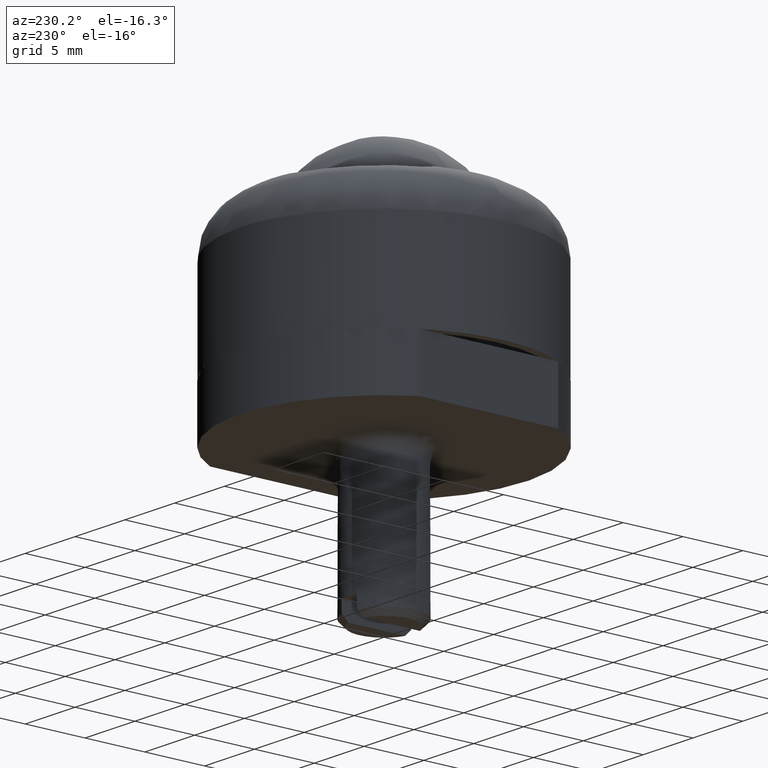
[diagram: clean part render]
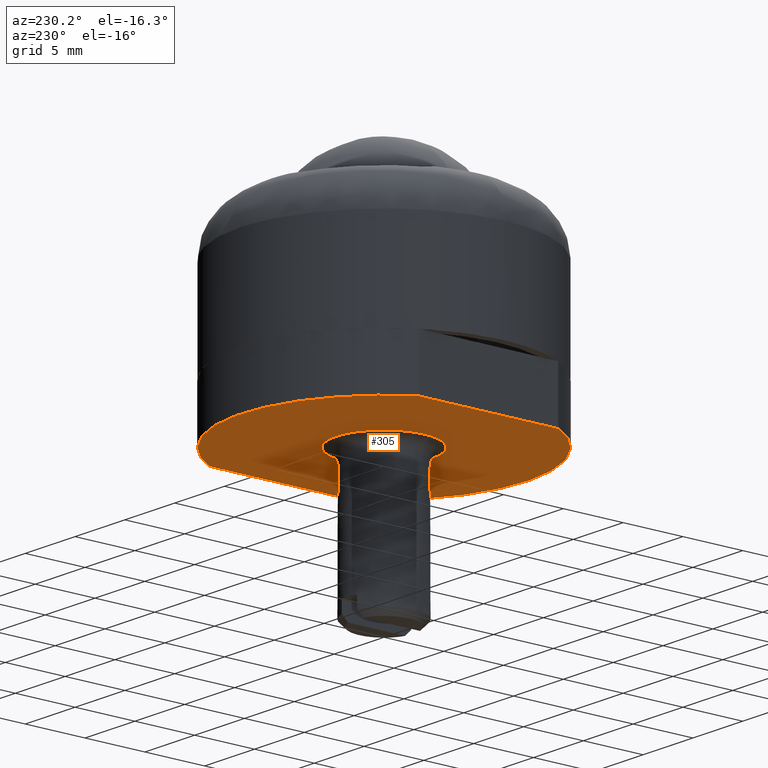
[diagram: same view with one face highlighted and labeled with its STEP entity id]
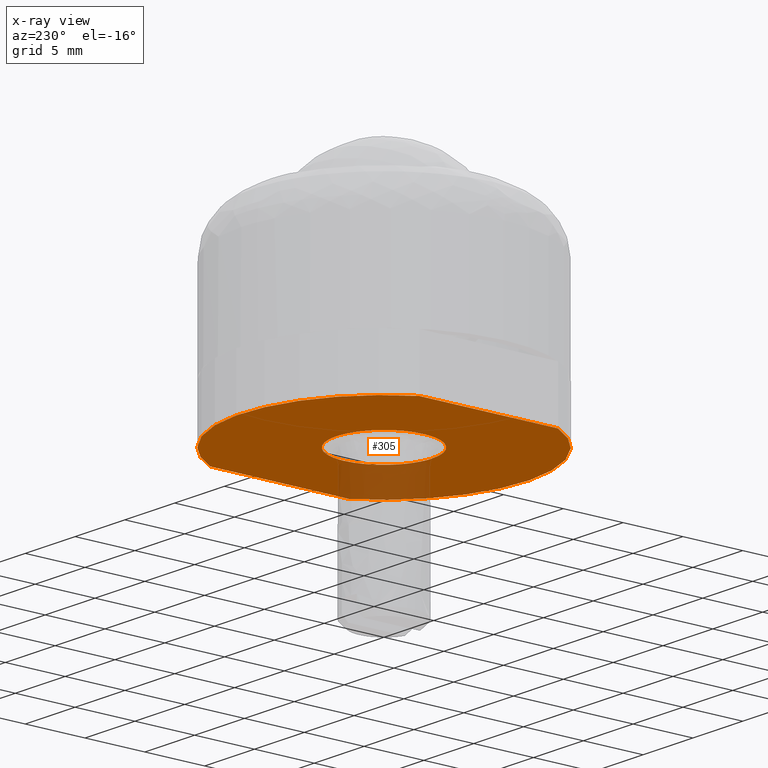
[diagram: x-ray of the same camera — body ghosted, the highlighted face saturated]
A machine part, auxiliary view. The second image highlights one B-rep face of the part: STEP entity #305.
The next image is the same camera in x-ray: the body ghosted, the highlighted face saturated — about 13% of this face is hidden behind the body in this view.
In plain terms, the highlighted face is a freeform B-spline surface patch.
Its self-contained STEP definition (entity closure, byte-faithful):
#79=CARTESIAN_POINT('',(-10.500000000000000,5.809475019311110,-4.499999999999949));
#80=VERTEX_POINT('',#79);
#81=CARTESIAN_POINT('',(-10.500000000000000,-5.809475019311050,-4.499999999999949));
#82=VERTEX_POINT('',#81);
#83=CARTESIAN_POINT('',(-10.500000000000000,5.809475019311110,-4.499999999999949));
#84=CARTESIAN_POINT('',(-10.500000000000000,-5.809475019311050,-4.499999999999949));
#85=QUASI_UNIFORM_CURVE('',1,(#83,#84),.UNSPECIFIED.,.F.,.U.);
#86=EDGE_CURVE('',#80,#82,#85,.T.);
#116=CARTESIAN_POINT('',(10.500000000000000,-5.809475019311140,-4.499999999999949));
#117=VERTEX_POINT('',#116);
#118=CARTESIAN_POINT('',(10.500000000000000,-5.809475019311140,-4.499999999999949));
#119=CARTESIAN_POINT('',(10.209897644275550,-6.333886693334643,-4.499999999999942));
#120=CARTESIAN_POINT('',(9.678991027976645,-7.143611496187610,-4.499999999999956));
#121=CARTESIAN_POINT('',(8.754647885169430,-8.238869655702674,-4.499999999999942));
#122=CARTESIAN_POINT('',(7.600726776900777,-9.348511302098936,-4.499999999999957));
#123=CARTESIAN_POINT('',(6.176930132163857,-10.347439606293980,-4.499999999999932));
#124=CARTESIAN_POINT('',(4.617617073226892,-11.107593382238310,-4.499999999999976));
#125=CARTESIAN_POINT('',(3.325304593255519,-11.554501171172310,-4.499999999999938));
#126=CARTESIAN_POINT('',(1.862893046707051,-11.888841448042360,-4.499999999999959));
#127=CARTESIAN_POINT('',(0.333581699305500,-12.035687069203190,-4.499999999999951));
#128=CARTESIAN_POINT('',(-1.465964979516675,-11.953236542248710,-4.499999999999965));
#129=CARTESIAN_POINT('',(-3.073155620036573,-11.641761040053760,-4.499999999999889));
#130=CARTESIAN_POINT('',(-4.491538995559180,-11.151187113564980,-4.500000000000045));
#131=CARTESIAN_POINT('',(-5.729655132544393,-10.572860456684509,-4.499999999999773));
#132=CARTESIAN_POINT('',(-6.896471854770953,-9.858507560751269,-4.500000000000010));
#133=CARTESIAN_POINT('',(-7.990723656296778,-8.984008440314105,-4.499999999999961));
#134=CARTESIAN_POINT('',(-9.267454682465868,-7.714916998579545,-4.499999999999929));
#135=CARTESIAN_POINT('',(-10.048856099447830,-6.625326096663493,-4.499999999999965));
#136=CARTESIAN_POINT('',(-10.500000000000000,-5.809475019311050,-4.499999999999949));
#137=B_SPLINE_CURVE_WITH_KNOTS('',3,(#118,#119,#120,#121,#122,#123,#124,#125,#126,#127,#128,#129,#130,#131,#132,#133,#134,#135,#136),.UNSPECIFIED.,.F.,.U.,(4,1,1,1,1,1,1,1,1,1,1,1,1,1,1,1,4),(8.902322E-009,1.797912602716149,2.896647512785947,4.295049562321530,6.592404278317126,8.090678238409247,9.489080168375581,10.687689903771521,12.585500492175850,14.083763953951360,16.081457093829979,17.479848755999761,18.578590696182751,20.176752487453950,21.575149138582969,22.773765831327179,25.570533412326569),.UNSPECIFIED.);
#138=EDGE_CURVE('',#117,#82,#137,.T.);
#155=CARTESIAN_POINT('',(10.500000000000000,5.809475019311150,-4.499999999999949));
#156=VERTEX_POINT('',#155);
#157=CARTESIAN_POINT('',(10.500000000000000,-5.809475019311140,-4.499999999999949));
#158=CARTESIAN_POINT('',(10.500000000000000,5.809475019311150,-4.499999999999949));
#159=QUASI_UNIFORM_CURVE('',1,(#157,#158),.UNSPECIFIED.,.F.,.U.);
#160=EDGE_CURVE('',#117,#156,#159,.T.);
#186=CARTESIAN_POINT('',(-10.500000000000000,5.809475019311110,-4.499999999999949));
#187=CARTESIAN_POINT('',(-10.209891868691580,6.333882352228954,-4.499999999999949));
#188=CARTESIAN_POINT('',(-9.605777944512733,7.255310469505210,-4.499999999999951));
#189=CARTESIAN_POINT('',(-8.574735707625033,8.436537060031220,-4.499999999999948));
#190=CARTESIAN_POINT('',(-7.434063319020019,9.462473951070864,-4.499999999999963));
#191=CARTESIAN_POINT('',(-6.114898456270278,10.371725912808380,-4.499999999999920));
#192=CARTESIAN_POINT('',(-4.680667396424663,11.085808602596350,-4.500000000000016));
#193=CARTESIAN_POINT('',(-3.325304872285918,11.554505568050651,-4.499999999999830));
#194=CARTESIAN_POINT('',(-2.057877435176815,11.844239126435101,-4.500000000000173));
#195=CARTESIAN_POINT('',(-0.833143874284101,11.992776339891220,-4.499999999999695));
#196=CARTESIAN_POINT('',(0.633451308731627,12.017222630824570,-4.500000000000363));
#197=CARTESIAN_POINT('',(2.126921809187940,11.848697464337430,-4.499999999999730));
#198=CARTESIAN_POINT('',(3.872054284301777,11.403633392725670,-4.500000000000074));
#199=CARTESIAN_POINT('',(5.445087277595493,10.747143966663151,-4.499999999999779));
#200=CARTESIAN_POINT('',(7.010314338339438,9.788818207950785,-4.500000000000004));
#201=CARTESIAN_POINT('',(8.193990405079218,8.810152231477940,-4.499999999999934));
#202=CARTESIAN_POINT('',(9.427722369384579,7.499224326280670,-4.499999999999961));
#203=CARTESIAN_POINT('',(10.113244700419550,6.508732446654804,-4.499999999999949));
#204=CARTESIAN_POINT('',(10.500000000000000,5.809475019311150,-4.499999999999949));
#205=B_SPLINE_CURVE_WITH_KNOTS('',3,(#186,#187,#188,#189,#190,#191,#192,#193,#194,#195,#196,#197,#198,#199,#200,#201,#202,#203,#204),.UNSPECIFIED.,.F.,.U.,(4,1,1,1,1,1,1,1,1,1,1,1,1,1,1,1,4),(8.897835E-009,1.797912602711968,3.296186892936774,4.694584629038069,6.392633846683260,8.090678238406341,9.489080168373040,10.687689903769240,11.986194627532001,13.184805067821051,15.082602067928160,16.481004867715448,18.578590696181990,20.176752487453491,21.974690458298308,23.173300524347361,25.570533412326530),.UNSPECIFIED.);
#206=EDGE_CURVE('',#80,#156,#205,.T.);
#214=CARTESIAN_POINT('',(-11.548949959297930,-13.198816603435240,-4.499999999999900));
#215=CARTESIAN_POINT('',(11.548950522561819,-13.198816603435240,-4.499999999999900));
#216=CARTESIAN_POINT('',(-11.548949959297930,13.198810380710340,-4.499999999999900));
#217=CARTESIAN_POINT('',(11.548950522561819,13.198810380710340,-4.499999999999900));
#218=B_SPLINE_SURFACE_WITH_KNOTS('',1,1,((#214,#216),(#215,#217)),.UNSPECIFIED.,.F.,.F.,.U.,(2,2),(2,2),(0.0,23.097900481859750),(0.0,26.397626984145582),.UNSPECIFIED.);
#219=ORIENTED_EDGE('',*,*,#206,.T.);
#220=ORIENTED_EDGE('',*,*,#160,.F.);
#221=ORIENTED_EDGE('',*,*,#138,.T.);
#222=ORIENTED_EDGE('',*,*,#86,.F.);
#223=EDGE_LOOP('',(#219,#220,#221,#222));
#224=FACE_OUTER_BOUND('',#223,.T.);
#225=CARTESIAN_POINT('',(-3.999684176578704,-0.050264159600141,-4.499999999999900));
#226=VERTEX_POINT('',#225);
#227=CARTESIAN_POINT('',(-4.0,0.0,-4.499999999999900));
#228=VERTEX_POINT('',#227);
#229=CARTESIAN_POINT('',(-3.999684176578704,-0.050264159600141,-4.499999999999900));
#230=CARTESIAN_POINT('',(-4.0,0.0,-4.499999999999900));
#231=QUASI_UNIFORM_CURVE('',1,(#229,#230),.UNSPECIFIED.,.F.,.U.);
#232=EDGE_CURVE('',#226,#228,#231,.T.);
#233=ORIENTED_EDGE('',*,*,#232,.F.);
#234=CARTESIAN_POINT('',(0.025111303395564,-3.999921177027848,-4.499999999999899));
#235=VERTEX_POINT('',#234);
#236=CARTESIAN_POINT('',(0.025111303395564,-3.999921177027848,-4.499999999999899));
#237=CARTESIAN_POINT('',(-0.317125567528658,-4.002170008766616,-4.499999999999891));
#238=CARTESIAN_POINT('',(-0.920541153919743,-3.927976344191393,-4.499999999999935));
#239=CARTESIAN_POINT('',(-1.751745237118776,-3.626288019553032,-4.499999999999866));
#240=CARTESIAN_POINT('',(-2.366398398245121,-3.249528601302264,-4.499999999999916));
#241=CARTESIAN_POINT('',(-2.930804822328052,-2.753552240857661,-4.499999999999912));
#242=CARTESIAN_POINT('',(-3.410933594520057,-2.150816930564041,-4.499999999999879));
#243=CARTESIAN_POINT('',(-3.755049696448426,-1.443019985042044,-4.499999999999898));
#244=CARTESIAN_POINT('',(-3.950617048764791,-0.734162109186115,-4.499999999999885));
#245=CARTESIAN_POINT('',(-3.996637067257391,-0.294697275434554,-4.499999999999881));
#246=CARTESIAN_POINT('',(-3.999684176578704,-0.050264159600141,-4.499999999999900));
#247=B_SPLINE_CURVE_WITH_KNOTS('',3,(#236,#237,#238,#239,#240,#241,#242,#243,#244,#245,#246),.UNSPECIFIED.,.F.,.U.,(4,1,1,1,1,1,1,1,4),(0.000000040040723,1.026713600767565,1.808974416914627,2.640135489933596,3.177914647720476,4.057958246989136,4.938008797570097,5.524712915542689,6.258070245550205),.UNSPECIFIED.);
#248=EDGE_CURVE('',#235,#226,#247,.T.);
#249=ORIENTED_EDGE('',*,*,#248,.F.);
#250=CARTESIAN_POINT('',(4.0,0.0,-4.499999999999900));
#251=VERTEX_POINT('',#250);
#252=CARTESIAN_POINT('',(4.0,0.0,-4.499999999999900));
#253=CARTESIAN_POINT('',(4.000099763452504,-0.342246650757845,-4.499999999999891));
#254=CARTESIAN_POINT('',(3.922122745795181,-0.945189930070948,-4.499999999999920));
#255=CARTESIAN_POINT('',(3.637925000411343,-1.713041520237169,-4.499999999999884));
#256=CARTESIAN_POINT('',(3.240089816935575,-2.389466266849083,-4.499999999999911));
#257=CARTESIAN_POINT('',(2.738344906107398,-2.953238354777755,-4.499999999999903));
#258=CARTESIAN_POINT('',(2.070145126238207,-3.452660096657348,-4.499999999999871));
#259=CARTESIAN_POINT('',(1.419396145120009,-3.764055521959317,-4.499999999999932));
#260=CARTESIAN_POINT('',(0.709307441201092,-3.955153655652417,-4.499999999999864));
#261=CARTESIAN_POINT('',(0.269560471540207,-3.998411213281082,-4.499999999999911));
#262=CARTESIAN_POINT('',(0.025111303395564,-3.999921177027848,-4.499999999999899));
#263=B_SPLINE_CURVE_WITH_KNOTS('',3,(#252,#253,#254,#255,#256,#257,#258,#259,#260,#261,#262),.UNSPECIFIED.,.F.,.U.,(4,1,1,1,1,1,1,1,4),(0.000000040043162,1.026720581053635,1.808986715649765,2.444587874536462,3.373504915515499,4.057985835790400,4.938042369706338,5.524750476696165,6.258112792421015),.UNSPECIFIED.);
#264=EDGE_CURVE('',#251,#235,#263,.T.);
#265=ORIENTED_EDGE('',*,*,#264,.F.);
#266=CARTESIAN_POINT('',(3.999684176578705,0.050264159600142,-4.499999999999900));
#267=VERTEX_POINT('',#266);
#268=CARTESIAN_POINT('',(3.999684176578705,0.050264159600142,-4.499999999999900));
#269=CARTESIAN_POINT('',(4.0,0.0,-4.499999999999900));
#270=QUASI_UNIFORM_CURVE('',1,(#268,#269),.UNSPECIFIED.,.F.,.U.);
#271=EDGE_CURVE('',#267,#251,#270,.T.);
#272=ORIENTED_EDGE('',*,*,#271,.F.);
#273=CARTESIAN_POINT('',(-0.025111303395536,3.999921177027848,-4.499999999999901));
#274=VERTEX_POINT('',#273);
#275=CARTESIAN_POINT('',(-0.025111303395536,3.999921177027848,-4.499999999999901));
#276=CARTESIAN_POINT('',(0.268229245587226,4.001813702505603,-4.499999999999893));
#277=CARTESIAN_POINT('',(0.757442024351810,3.950799599420539,-4.499999999999918));
#278=CARTESIAN_POINT('',(1.494041923563894,3.733347986264920,-4.499999999999888));
#279=CARTESIAN_POINT('',(2.124025821649318,3.417867584647329,-4.499999999999927));
#280=CARTESIAN_POINT('',(2.760246813083117,2.930419721423154,-4.499999999999860));
#281=CARTESIAN_POINT('',(3.280071558732422,2.339541667902940,-4.499999999999917));
#282=CARTESIAN_POINT('',(3.698499430529991,1.597927806407143,-4.499999999999889));
#283=CARTESIAN_POINT('',(3.940438110491915,0.831834402972941,-4.499999999999941));
#284=CARTESIAN_POINT('',(3.996630426323140,0.294695585230112,-4.499999999999830));
#285=CARTESIAN_POINT('',(3.999684176578705,0.050264159600142,-4.499999999999900));
#286=B_SPLINE_CURVE_WITH_KNOTS('',3,(#275,#276,#277,#278,#279,#280,#281,#282,#283,#284,#285),.UNSPECIFIED.,.F.,.U.,(4,1,1,1,1,1,1,1,4),(0.000000040040174,0.880031844306282,1.466734252800506,2.297886045216485,2.982381073107023,3.862392471147102,4.644661170695125,5.524712915542663,6.258070245550180),.UNSPECIFIED.);
#287=EDGE_CURVE('',#274,#267,#286,.T.);
#288=ORIENTED_EDGE('',*,*,#287,.F.);
#289=CARTESIAN_POINT('',(-4.0,0.0,-4.499999999999900));
#290=CARTESIAN_POINT('',(-4.000108567002863,0.342252779860697,-4.499999999999902));
#291=CARTESIAN_POINT('',(-3.936849724323132,0.831104101655851,-4.499999999999901));
#292=CARTESIAN_POINT('',(-3.711603100325258,1.530203738180509,-4.499999999999899));
#293=CARTESIAN_POINT('',(-3.421967735615791,2.117273015119177,-4.499999999999902));
#294=CARTESIAN_POINT('',(-2.937790394450533,2.757114263452005,-4.499999999999898));
#295=CARTESIAN_POINT('',(-2.318880406579954,3.294710794332514,-4.499999999999880));
#296=CARTESIAN_POINT('',(-1.631889649418648,3.676614104779366,-4.499999999999887));
#297=CARTESIAN_POINT('',(-0.872119220068966,3.931827543484185,-4.499999999999874));
#298=CARTESIAN_POINT('',(-0.334752290826727,3.998044781622780,-4.499999999999907));
#299=CARTESIAN_POINT('',(-0.025111303395536,3.999921177027848,-4.499999999999901));
#300=B_SPLINE_CURVE_WITH_KNOTS('',3,(#289,#290,#291,#292,#293,#294,#295,#296,#297,#298,#299),.UNSPECIFIED.,.F.,.U.,(4,1,1,1,1,1,1,1,4),(0.000000040039052,1.026720581050287,1.466744224700962,2.200126703708061,2.982401349740496,3.862418730299925,4.644692748443036,5.329183371206019,6.258112792421067),.UNSPECIFIED.);
#301=EDGE_CURVE('',#228,#274,#300,.T.);
#302=ORIENTED_EDGE('',*,*,#301,.F.);
#303=EDGE_LOOP('',(#233,#249,#265,#272,#288,#302));
#304=FACE_BOUND('',#303,.T.);
#305=ADVANCED_FACE('',(#224,#304),#218,.F.);